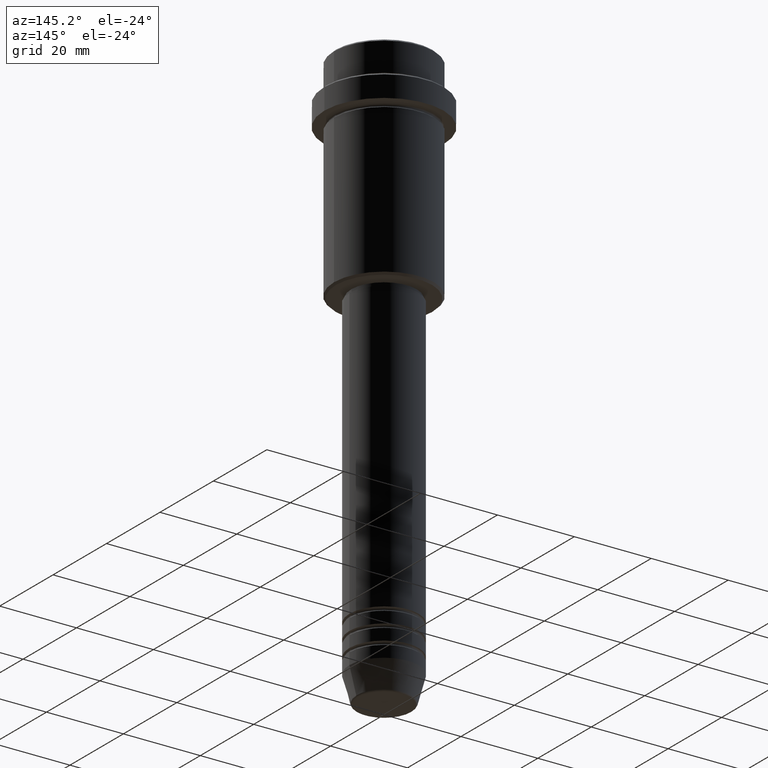
[diagram: clean part render]
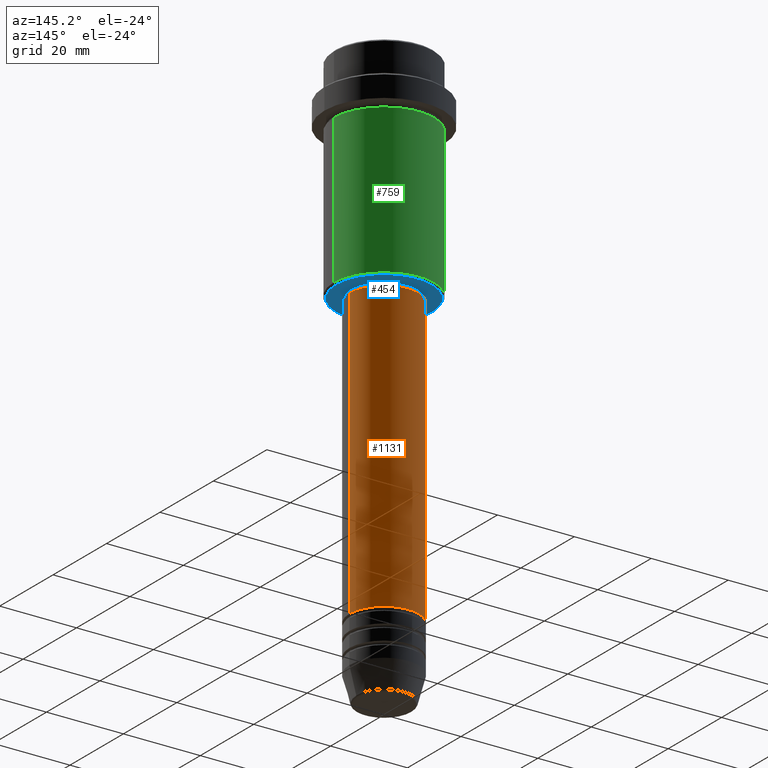
[diagram: same view with three faces highlighted in distinct colors, each labeled with its STEP entity id]
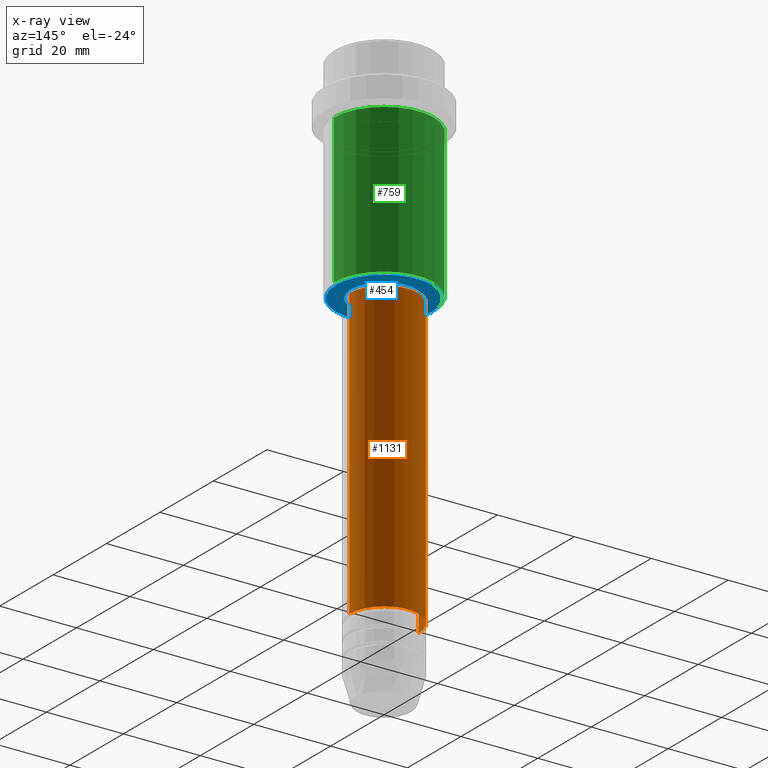
[diagram: x-ray of the same camera — body ghosted, the three highlighted faces saturated]
A machine part, auxiliary view with three faces highlighted in distinct colors.
The next image is the same camera in x-ray (body ghosted, the three faces saturated) — at least one of them is partly hidden behind the body in this view.
Their STEP definitions:

[orange] entity #1131 — the highlighted cylindrical surface (partial cylindrical patch) has radius 9 mm, axis along (-0, -0, 1).
#50 = EDGE_CURVE ( 'NONE', #794, #231, #1109, .T. ) ;
#58 = ORIENTED_EDGE ( 'NONE', *, *, #50, .F. ) ;
#59 = FACE_OUTER_BOUND ( 'NONE', #1098, .T. ) ;
#78 = CARTESIAN_POINT ( 'NONE',  ( -9.000000000000000000, 1.102182119232617714E-15, -130.9999999999998579 ) ) ;
#167 = ORIENTED_EDGE ( 'NONE', *, *, #878, .T. ) ;
#231 = VERTEX_POINT ( 'NONE', #296 ) ;
#269 = CARTESIAN_POINT ( 'NONE',  ( 0.000000000000000000, 0.000000000000000000, -55.99999999999997158 ) ) ;
#280 = DIRECTION ( 'NONE',  ( 1.000000000000000000, 0.000000000000000000, 0.000000000000000000 ) ) ;
#296 = CARTESIAN_POINT ( 'NONE',  ( -9.000000000000001776, 1.102182119232617911E-15, -55.99999999999997158 ) ) ;
#314 = VERTEX_POINT ( 'NONE', #78 ) ;
#325 = CARTESIAN_POINT ( 'NONE',  ( -9.000000000000001776, 1.102182119232617911E-15, 0.000000000000000000 ) ) ;
#369 = ORIENTED_EDGE ( 'NONE', *, *, #552, .T. ) ;
#400 = CARTESIAN_POINT ( 'NONE',  ( 9.000000000000001776, 0.000000000000000000, -55.99999999999997158 ) ) ;
#457 = AXIS2_PLACEMENT_3D ( 'NONE', #269, #1123, #280 ) ;
#476 = VECTOR ( 'NONE', #848, 1000.000000000000000 ) ;
#552 = EDGE_CURVE ( 'NONE', #576, #314, #649, .T. ) ;
#576 = VERTEX_POINT ( 'NONE', #1030 ) ;
#598 = DIRECTION ( 'NONE',  ( -0.000000000000000000, -0.000000000000000000, 1.000000000000000000 ) ) ;
#602 = CARTESIAN_POINT ( 'NONE',  ( 9.000000000000001776, 0.000000000000000000, 0.000000000000000000 ) ) ;
#649 = CIRCLE ( 'NONE', #951, 9.000000000000000000 ) ;
#684 = EDGE_CURVE ( 'NONE', #576, #794, #1386, .T. ) ;
#794 = VERTEX_POINT ( 'NONE', #400 ) ;
#806 = CARTESIAN_POINT ( 'NONE',  ( 0.000000000000000000, 0.000000000000000000, -130.9999999999998579 ) ) ;
#848 = DIRECTION ( 'NONE',  ( -0.000000000000000000, -0.000000000000000000, 1.000000000000000000 ) ) ;
#866 = ORIENTED_EDGE ( 'NONE', *, *, #684, .F. ) ;
#878 = EDGE_CURVE ( 'NONE', #314, #231, #1328, .T. ) ;
#925 = CYLINDRICAL_SURFACE ( 'NONE', #976, 9.000000000000001776 ) ;
#951 = AXIS2_PLACEMENT_3D ( 'NONE', #806, #598, #1135 ) ;
#976 = AXIS2_PLACEMENT_3D ( 'NONE', #1162, #1281, #1367 ) ;
#1000 = VECTOR ( 'NONE', #1417, 1000.000000000000000 ) ;
#1030 = CARTESIAN_POINT ( 'NONE',  ( 9.000000000000000000, 0.000000000000000000, -130.9999999999998579 ) ) ;
#1098 = EDGE_LOOP ( 'NONE', ( #369, #167, #58, #866 ) ) ;
#1109 = CIRCLE ( 'NONE', #457, 9.000000000000001776 ) ;
#1123 = DIRECTION ( 'NONE',  ( -0.000000000000000000, -0.000000000000000000, 1.000000000000000000 ) ) ;
#1131 = ADVANCED_FACE ( 'NONE', ( #59 ), #925, .T. ) ;
#1135 = DIRECTION ( 'NONE',  ( 1.000000000000000000, 0.000000000000000000, 0.000000000000000000 ) ) ;
#1162 = CARTESIAN_POINT ( 'NONE',  ( 0.000000000000000000, 0.000000000000000000, 0.000000000000000000 ) ) ;
#1281 = DIRECTION ( 'NONE',  ( -0.000000000000000000, -0.000000000000000000, 1.000000000000000000 ) ) ;
#1328 = LINE ( 'NONE', #325, #1000 ) ;
#1367 = DIRECTION ( 'NONE',  ( 1.000000000000000000, 0.000000000000000000, 0.000000000000000000 ) ) ;
#1386 = LINE ( 'NONE', #602, #476 ) ;
#1417 = DIRECTION ( 'NONE',  ( -0.000000000000000000, -0.000000000000000000, 1.000000000000000000 ) ) ;

[blue] entity #454 — the highlighted planar face has unit normal (0, 0, -1).
#16 = AXIS2_PLACEMENT_3D ( 'NONE', #728, #288, #1163 ) ;
#21 = CARTESIAN_POINT ( 'NONE',  ( 0.000000000000000000, 0.000000000000000000, -54.99999999999999289 ) ) ;
#35 = ORIENTED_EDGE ( 'NONE', *, *, #814, .T. ) ;
#100 = DIRECTION ( 'NONE',  ( -1.000000000000000000, 0.000000000000000000, -0.000000000000000000 ) ) ;
#115 = PLANE ( 'NONE',  #698 ) ;
#121 = DIRECTION ( 'NONE',  ( 0.000000000000000000, 0.000000000000000000, -1.000000000000000000 ) ) ;
#127 = CARTESIAN_POINT ( 'NONE',  ( -12.49999999999996980, 1.561424668912873336E-15, -54.99999999999999289 ) ) ;
#132 = AXIS2_PLACEMENT_3D ( 'NONE', #833, #610, #1054 ) ;
#217 = CARTESIAN_POINT ( 'NONE',  ( 0.000000000000000000, 0.000000000000000000, -54.99999999999998579 ) ) ;
#288 = DIRECTION ( 'NONE',  ( 0.000000000000000000, 0.000000000000000000, -1.000000000000000000 ) ) ;
#337 = DIRECTION ( 'NONE',  ( 1.000000000000000000, 0.000000000000000000, 0.000000000000000000 ) ) ;
#338 = ORIENTED_EDGE ( 'NONE', *, *, #1066, .T. ) ;
#417 = CIRCLE ( 'NONE', #16, 12.49999999999996980 ) ;
#437 = CIRCLE ( 'NONE', #132, 8.499999999999994671 ) ;
#454 = ADVANCED_FACE ( 'NONE', ( #1095, #667 ), #115, .T. ) ;
#526 = EDGE_LOOP ( 'NONE', ( #35, #733 ) ) ;
#550 = VERTEX_POINT ( 'NONE', #696 ) ;
#610 = DIRECTION ( 'NONE',  ( -0.000000000000000000, -0.000000000000000000, 1.000000000000000000 ) ) ;
#631 = AXIS2_PLACEMENT_3D ( 'NONE', #217, #881, #337 ) ;
#656 = EDGE_LOOP ( 'NONE', ( #338, #725 ) ) ;
#667 = FACE_BOUND ( 'NONE', #526, .T. ) ;
#695 = DIRECTION ( 'NONE',  ( 0.000000000000000000, 0.000000000000000000, -1.000000000000000000 ) ) ;
#696 = CARTESIAN_POINT ( 'NONE',  ( 12.49999999999996980, 0.000000000000000000, -54.99999999999999289 ) ) ;
#698 = AXIS2_PLACEMENT_3D ( 'NONE', #979, #121, #100 ) ;
#725 = ORIENTED_EDGE ( 'NONE', *, *, #740, .T. ) ;
#728 = CARTESIAN_POINT ( 'NONE',  ( 0.000000000000000000, 0.000000000000000000, -54.99999999999999289 ) ) ;
#733 = ORIENTED_EDGE ( 'NONE', *, *, #1337, .T. ) ;
#740 = EDGE_CURVE ( 'NONE', #987, #550, #417, .T. ) ;
#775 = CIRCLE ( 'NONE', #631, 8.499999999999994671 ) ;
#814 = EDGE_CURVE ( 'NONE', #1018, #944, #437, .T. ) ;
#833 = CARTESIAN_POINT ( 'NONE',  ( 0.000000000000000000, 0.000000000000000000, -54.99999999999998579 ) ) ;
#881 = DIRECTION ( 'NONE',  ( -0.000000000000000000, -0.000000000000000000, 1.000000000000000000 ) ) ;
#901 = CARTESIAN_POINT ( 'NONE',  ( 8.499999999999994671, 0.000000000000000000, -54.99999999999998579 ) ) ;
#944 = VERTEX_POINT ( 'NONE', #1340 ) ;
#979 = CARTESIAN_POINT ( 'NONE',  ( 0.000000000000000000, 13.00000000000000000, -54.99999999999999289 ) ) ;
#987 = VERTEX_POINT ( 'NONE', #127 ) ;
#1018 = VERTEX_POINT ( 'NONE', #901 ) ;
#1054 = DIRECTION ( 'NONE',  ( 1.000000000000000000, 0.000000000000000000, 0.000000000000000000 ) ) ;
#1066 = EDGE_CURVE ( 'NONE', #550, #987, #1412, .T. ) ;
#1095 = FACE_OUTER_BOUND ( 'NONE', #656, .T. ) ;
#1163 = DIRECTION ( 'NONE',  ( -1.000000000000000000, 0.000000000000000000, 0.000000000000000000 ) ) ;
#1259 = AXIS2_PLACEMENT_3D ( 'NONE', #21, #695, #1334 ) ;
#1334 = DIRECTION ( 'NONE',  ( -1.000000000000000000, 0.000000000000000000, 0.000000000000000000 ) ) ;
#1337 = EDGE_CURVE ( 'NONE', #944, #1018, #775, .T. ) ;
#1340 = CARTESIAN_POINT ( 'NONE',  ( -8.499999999999994671, 1.040949779275249745E-15, -54.99999999999998579 ) ) ;
#1412 = CIRCLE ( 'NONE', #1259, 12.49999999999996980 ) ;

[green] entity #759 — the highlighted cylindrical surface (partial cylindrical patch) has radius 13 mm, axis along (-0, -0, 1).
#64 = VERTEX_POINT ( 'NONE', #587 ) ;
#93 = AXIS2_PLACEMENT_3D ( 'NONE', #614, #1285, #1377 ) ;
#106 = EDGE_CURVE ( 'NONE', #736, #947, #441, .T. ) ;
#190 = FACE_OUTER_BOUND ( 'NONE', #765, .T. ) ;
#196 = EDGE_CURVE ( 'NONE', #736, #64, #278, .T. ) ;
#255 = VECTOR ( 'NONE', #597, 1000.000000000000000 ) ;
#278 = CIRCLE ( 'NONE', #1184, 13.00000000000000000 ) ;
#287 = DIRECTION ( 'NONE',  ( -0.000000000000000000, -0.000000000000000000, 1.000000000000000000 ) ) ;
#291 = CARTESIAN_POINT ( 'NONE',  ( 0.000000000000000000, 0.000000000000000000, -54.49999999999996447 ) ) ;
#295 = ORIENTED_EDGE ( 'NONE', *, *, #196, .T. ) ;
#441 = LINE ( 'NONE', #942, #1001 ) ;
#535 = CARTESIAN_POINT ( 'NONE',  ( -13.00000000000000000, 1.592040838891559095E-15, -15.99999999999997335 ) ) ;
#587 = CARTESIAN_POINT ( 'NONE',  ( -13.00000000000000000, 1.592040838891559095E-15, -54.49999999999996447 ) ) ;
#597 = DIRECTION ( 'NONE',  ( -0.000000000000000000, -0.000000000000000000, 1.000000000000000000 ) ) ;
#614 = CARTESIAN_POINT ( 'NONE',  ( 0.000000000000000000, 0.000000000000000000, -15.99999999999997335 ) ) ;
#734 = DIRECTION ( 'NONE',  ( 1.000000000000000000, 0.000000000000000000, 0.000000000000000000 ) ) ;
#736 = VERTEX_POINT ( 'NONE', #1398 ) ;
#739 = ORIENTED_EDGE ( 'NONE', *, *, #1185, .F. ) ;
#759 = ADVANCED_FACE ( 'NONE', ( #190 ), #1154, .T. ) ;
#765 = EDGE_LOOP ( 'NONE', ( #295, #1410, #739, #1296 ) ) ;
#867 = AXIS2_PLACEMENT_3D ( 'NONE', #1267, #948, #734 ) ;
#942 = CARTESIAN_POINT ( 'NONE',  ( 13.00000000000000000, 0.000000000000000000, 0.000000000000000000 ) ) ;
#947 = VERTEX_POINT ( 'NONE', #1011 ) ;
#948 = DIRECTION ( 'NONE',  ( -0.000000000000000000, -0.000000000000000000, 1.000000000000000000 ) ) ;
#1001 = VECTOR ( 'NONE', #287, 1000.000000000000000 ) ;
#1011 = CARTESIAN_POINT ( 'NONE',  ( 13.00000000000000000, 0.000000000000000000, -15.99999999999997335 ) ) ;
#1141 = DIRECTION ( 'NONE',  ( -1.000000000000000000, 0.000000000000000000, 0.000000000000000000 ) ) ;
#1143 = LINE ( 'NONE', #1272, #255 ) ;
#1154 = CYLINDRICAL_SURFACE ( 'NONE', #867, 13.00000000000000000 ) ;
#1184 = AXIS2_PLACEMENT_3D ( 'NONE', #291, #1394, #1141 ) ;
#1185 = EDGE_CURVE ( 'NONE', #947, #1294, #1393, .T. ) ;
#1212 = EDGE_CURVE ( 'NONE', #64, #1294, #1143, .T. ) ;
#1267 = CARTESIAN_POINT ( 'NONE',  ( 0.000000000000000000, 0.000000000000000000, 0.000000000000000000 ) ) ;
#1272 = CARTESIAN_POINT ( 'NONE',  ( -13.00000000000000000, 1.592040838891559095E-15, 0.000000000000000000 ) ) ;
#1285 = DIRECTION ( 'NONE',  ( -0.000000000000000000, -0.000000000000000000, 1.000000000000000000 ) ) ;
#1294 = VERTEX_POINT ( 'NONE', #535 ) ;
#1296 = ORIENTED_EDGE ( 'NONE', *, *, #106, .F. ) ;
#1377 = DIRECTION ( 'NONE',  ( 1.000000000000000000, 0.000000000000000000, 0.000000000000000000 ) ) ;
#1393 = CIRCLE ( 'NONE', #93, 13.00000000000000000 ) ;
#1394 = DIRECTION ( 'NONE',  ( -0.000000000000000000, -0.000000000000000000, 1.000000000000000000 ) ) ;
#1398 = CARTESIAN_POINT ( 'NONE',  ( 13.00000000000000000, 0.000000000000000000, -54.49999999999996447 ) ) ;
#1410 = ORIENTED_EDGE ( 'NONE', *, *, #1212, .T. ) ;